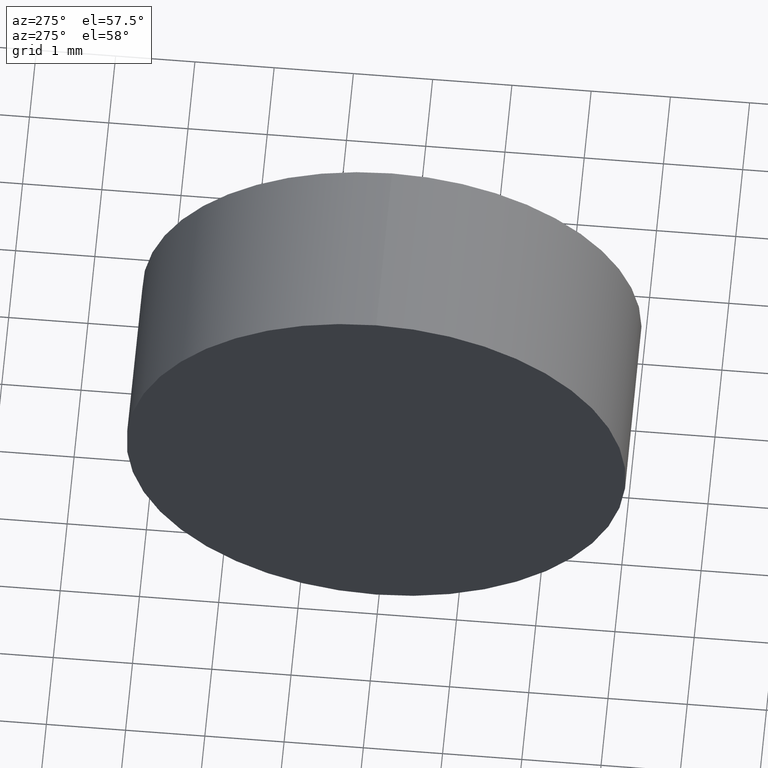
[diagram: clean part render]
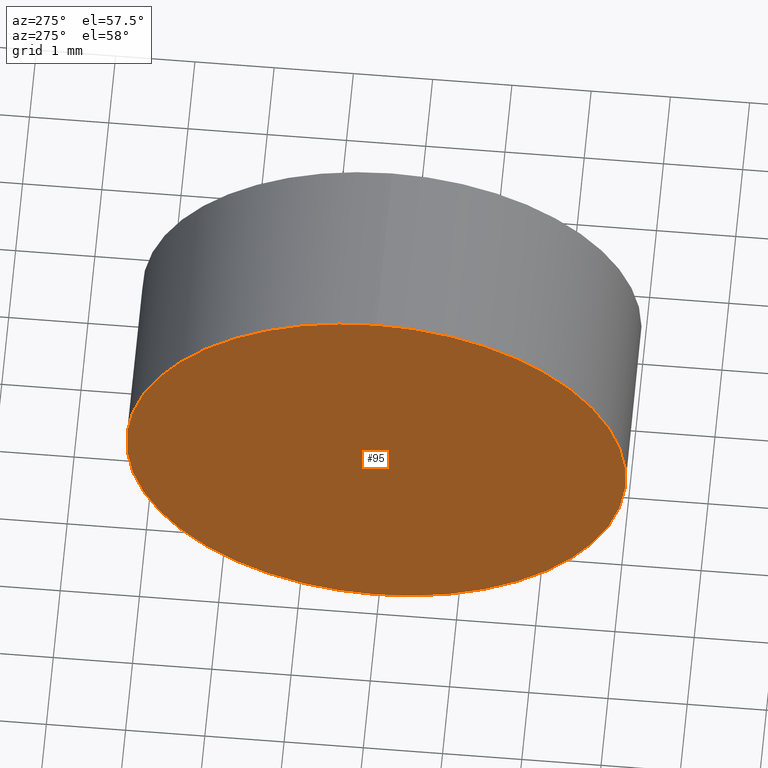
[diagram: same view with one face highlighted and labeled with its STEP entity id]
A machine part, auxiliary view. The second image highlights one B-rep face of the part: STEP entity #95.
In plain terms, the highlighted planar face has unit normal (1, 0, 0).
Its self-contained STEP definition (entity closure, byte-faithful):
#6 = EDGE_CURVE ( 'NONE', #52, #143, #66, .T. ) ;
#7 = CARTESIAN_POINT ( 'NONE',  ( 22.20087548928661300, 13.03112609140304000, 3.149999999999998100 ) ) ;
#16 = ORIENTED_EDGE ( 'NONE', *, *, #6, .T. ) ;
#39 = CARTESIAN_POINT ( 'NONE',  ( 22.20087548928661300, 13.03112609140304000, 0.0000000000000000000 ) ) ;
#52 = VERTEX_POINT ( 'NONE', #61 ) ;
#58 = CARTESIAN_POINT ( 'NONE',  ( 22.20087548928661300, 13.03112609140304000, 0.0000000000000000000 ) ) ;
#61 = CARTESIAN_POINT ( 'NONE',  ( 22.20087548928661300, 13.03112609140304000, -3.149999999999998100 ) ) ;
#66 = CIRCLE ( 'NONE', #121, 3.149999999999998100 ) ;
#67 = DIRECTION ( 'NONE',  ( 1.000000000000000000, 0.0000000000000000000, 0.0000000000000000000 ) ) ;
#74 = EDGE_CURVE ( 'NONE', #143, #52, #163, .T. ) ;
#76 = DIRECTION ( 'NONE',  ( -1.000000000000000000, -0.0000000000000000000, -0.0000000000000000000 ) ) ;
#77 = DIRECTION ( 'NONE',  ( 0.0000000000000000000, 0.0000000000000000000, 1.000000000000000000 ) ) ;
#95 = ADVANCED_FACE ( 'NONE', ( #139 ), #177, .F. ) ;
#96 = CARTESIAN_POINT ( 'NONE',  ( 22.20087548928661300, 13.03112609140304000, 0.0000000000000000000 ) ) ;
#97 = DIRECTION ( 'NONE',  ( -1.000000000000000000, -0.0000000000000000000, -0.0000000000000000000 ) ) ;
#121 = AXIS2_PLACEMENT_3D ( 'NONE', #39, #76, #123 ) ;
#123 = DIRECTION ( 'NONE',  ( 0.0000000000000000000, 0.0000000000000000000, 1.000000000000000000 ) ) ;
#126 = DIRECTION ( 'NONE',  ( 0.0000000000000000000, 0.0000000000000000000, -1.000000000000000000 ) ) ;
#135 = ORIENTED_EDGE ( 'NONE', *, *, #74, .T. ) ;
#139 = FACE_OUTER_BOUND ( 'NONE', #164, .T. ) ;
#140 = AXIS2_PLACEMENT_3D ( 'NONE', #96, #67, #126 ) ;
#143 = VERTEX_POINT ( 'NONE', #7 ) ;
#160 = AXIS2_PLACEMENT_3D ( 'NONE', #58, #97, #77 ) ;
#163 = CIRCLE ( 'NONE', #160, 3.149999999999998100 ) ;
#164 = EDGE_LOOP ( 'NONE', ( #135, #16 ) ) ;
#177 = PLANE ( 'NONE',  #140 ) ;